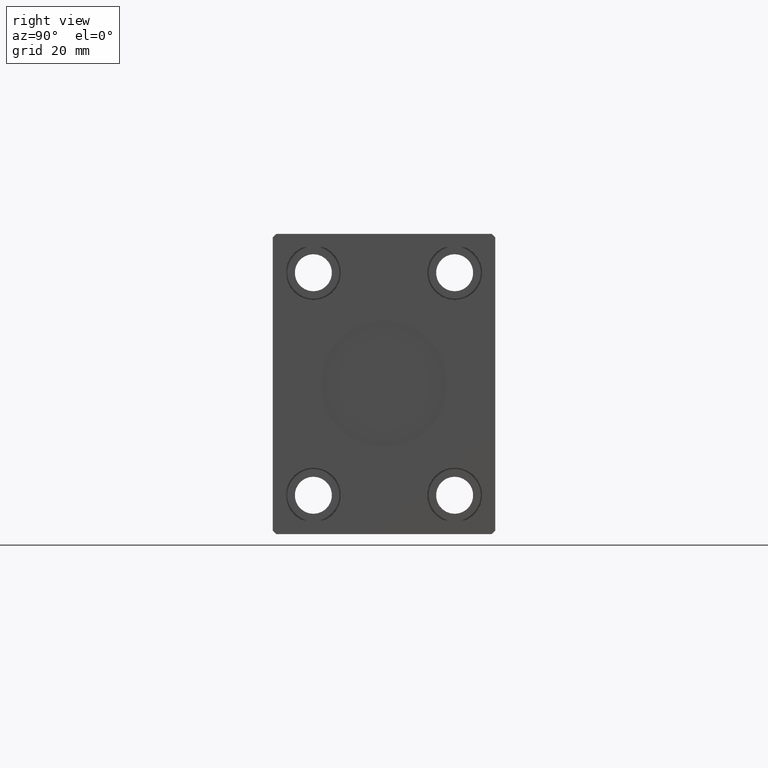
[diagram: clean part render]
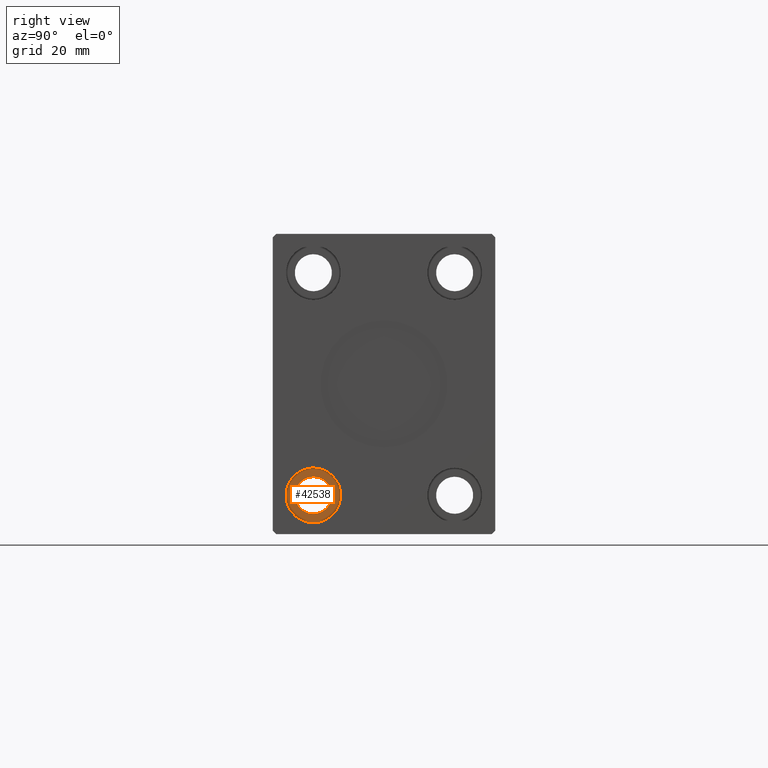
[diagram: same view with one face highlighted and labeled with its STEP entity id]
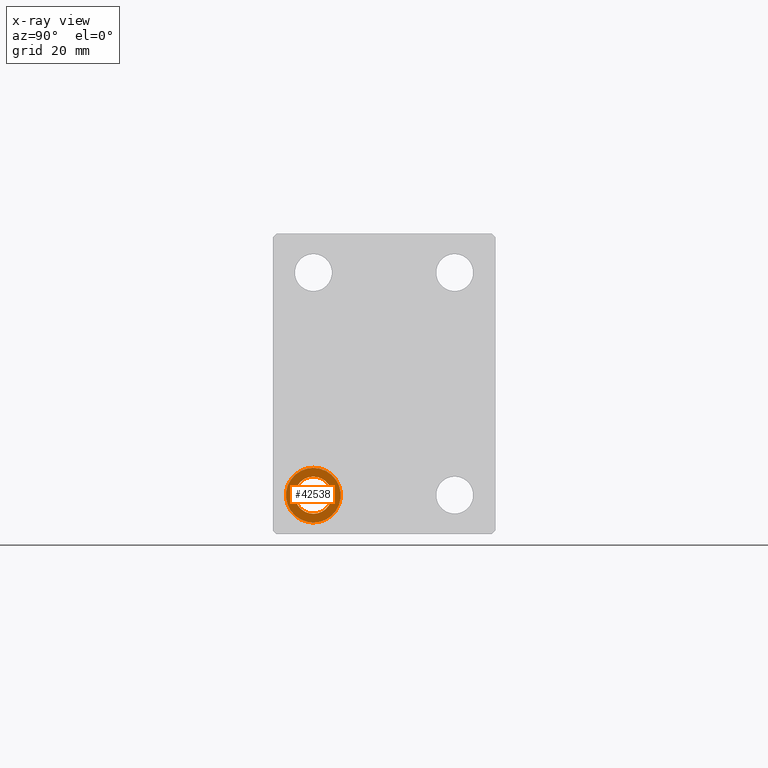
[diagram: x-ray of the same camera — body ghosted, the highlighted face saturated]
A machine part, right view. The second image highlights one B-rep face of the part: STEP entity #42538.
The next image is the same camera in x-ray: the body ghosted, the highlighted face saturated — about 0% of this face is hidden behind the body in this view.
In plain terms, the highlighted planar face has unit normal (-1, 0, 0).
Its self-contained STEP definition (entity closure, byte-faithful):
#860 = EDGE_CURVE ( 'NONE', #17004, #21632, #17585, .T. ) ;
#2600 = EDGE_CURVE ( 'NONE', #32038, #29915, #19029, .T. ) ;
#3164 = DIRECTION ( 'NONE',  ( 0.000000000000000000, 0.000000000000000000, 1.000000000000000000 ) ) ;
#3239 = DIRECTION ( 'NONE',  ( 0.000000000000000000, 0.000000000000000000, 1.000000000000000000 ) ) ;
#3459 = EDGE_LOOP ( 'NONE', ( #23841, #4459 ) ) ;
#4338 = EDGE_CURVE ( 'NONE', #29915, #32038, #41360, .T. ) ;
#4459 = ORIENTED_EDGE ( 'NONE', *, *, #4338, .T. ) ;
#5281 = CARTESIAN_POINT ( 'NONE',  ( 140.6699999999999875, -19.99999999999999645, -31.49999999999998579 ) ) ;
#5956 = DIRECTION ( 'NONE',  ( -1.000000000000000000, 0.000000000000000000, 0.000000000000000000 ) ) ;
#8411 = PLANE ( 'NONE',  #28754 ) ;
#9690 = CARTESIAN_POINT ( 'NONE',  ( 140.6699999999999875, -19.99999999999999645, -31.49999999999998579 ) ) ;
#11077 = CARTESIAN_POINT ( 'NONE',  ( 140.6699999999999875, -19.99999999999999645, -31.49999999999998579 ) ) ;
#11781 = FACE_OUTER_BOUND ( 'NONE', #16981, .T. ) ;
#15148 = CARTESIAN_POINT ( 'NONE',  ( 140.6699999999999875, -19.99999999999999645, -23.74999999999998579 ) ) ;
#15710 = AXIS2_PLACEMENT_3D ( 'NONE', #5281, #42849, #25527 ) ;
#16981 = EDGE_LOOP ( 'NONE', ( #34651, #36290 ) ) ;
#17004 = VERTEX_POINT ( 'NONE', #15148 ) ;
#17585 = CIRCLE ( 'NONE', #21180, 7.750000000000000000 ) ;
#18275 = DIRECTION ( 'NONE',  ( 1.000000000000000000, -0.000000000000000000, -0.000000000000000000 ) ) ;
#18763 = FACE_BOUND ( 'NONE', #3459, .T. ) ;
#19029 = CIRCLE ( 'NONE', #44171, 5.250000000000000888 ) ;
#21180 = AXIS2_PLACEMENT_3D ( 'NONE', #11077, #18275, #41919 ) ;
#21632 = VERTEX_POINT ( 'NONE', #40911 ) ;
#22656 = AXIS2_PLACEMENT_3D ( 'NONE', #9690, #37146, #3164 ) ;
#23841 = ORIENTED_EDGE ( 'NONE', *, *, #2600, .T. ) ;
#25527 = DIRECTION ( 'NONE',  ( 0.000000000000000000, 0.000000000000000000, -1.000000000000000000 ) ) ;
#25736 = DIRECTION ( 'NONE',  ( -1.000000000000000000, 0.000000000000000000, 0.000000000000000000 ) ) ;
#28754 = AXIS2_PLACEMENT_3D ( 'NONE', #32485, #25736, #29332 ) ;
#29332 = DIRECTION ( 'NONE',  ( 0.000000000000000000, 0.000000000000000000, -1.000000000000000000 ) ) ;
#29915 = VERTEX_POINT ( 'NONE', #43517 ) ;
#30240 = CARTESIAN_POINT ( 'NONE',  ( 140.6699999999999875, -19.99999999999999645, -31.49999999999998579 ) ) ;
#31511 = CIRCLE ( 'NONE', #15710, 7.750000000000000000 ) ;
#32038 = VERTEX_POINT ( 'NONE', #40790 ) ;
#32485 = CARTESIAN_POINT ( 'NONE',  ( 140.6699999999999875, -19.99999999999999645, -31.49999999999998579 ) ) ;
#32880 = EDGE_CURVE ( 'NONE', #21632, #17004, #31511, .T. ) ;
#34651 = ORIENTED_EDGE ( 'NONE', *, *, #32880, .T. ) ;
#36290 = ORIENTED_EDGE ( 'NONE', *, *, #860, .T. ) ;
#37146 = DIRECTION ( 'NONE',  ( -1.000000000000000000, 0.000000000000000000, 0.000000000000000000 ) ) ;
#40790 = CARTESIAN_POINT ( 'NONE',  ( 140.6699999999999875, -19.99999999999999645, -26.24999999999998579 ) ) ;
#40911 = CARTESIAN_POINT ( 'NONE',  ( 140.6699999999999875, -19.99999999999999645, -39.24999999999998579 ) ) ;
#41360 = CIRCLE ( 'NONE', #22656, 5.250000000000000888 ) ;
#41919 = DIRECTION ( 'NONE',  ( 0.000000000000000000, 0.000000000000000000, -1.000000000000000000 ) ) ;
#42538 = ADVANCED_FACE ( 'NONE', ( #18763, #11781 ), #8411, .F. ) ;
#42849 = DIRECTION ( 'NONE',  ( 1.000000000000000000, -0.000000000000000000, -0.000000000000000000 ) ) ;
#43517 = CARTESIAN_POINT ( 'NONE',  ( 140.6699999999999875, -19.99999999999999645, -36.74999999999998579 ) ) ;
#44171 = AXIS2_PLACEMENT_3D ( 'NONE', #30240, #5956, #3239 ) ;